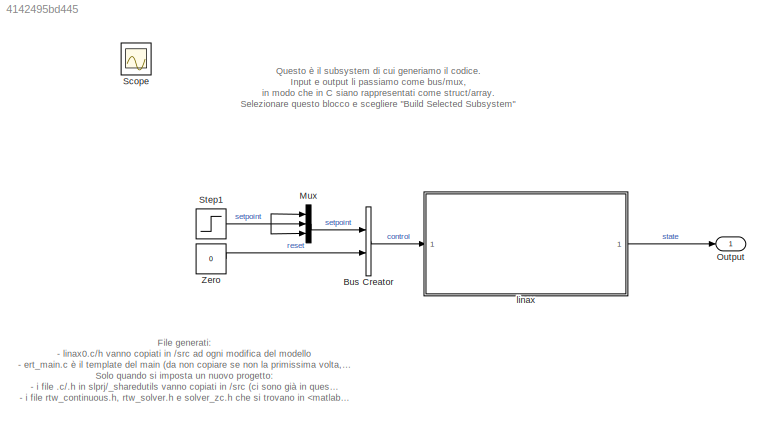
MODEL slx_4142495bd445
KIND model
CONFIG AbsTol = auto
CONFIG EnableMultiTasking = on
CONFIG FixedStep = auto
CONFIG MaxStep = auto
CONFIG MinStep = auto
CONFIG RelTol = 1e-3
CONFIG SampleTimeConstraint = Unconstrained
CONFIG Solver = VariableStepAuto
CONFIG SolverName = VariableStepAuto
CONFIG StartTime = 0.0
CONFIG StopTime = 10
WORKSPACE source: MATLAB code (in-file) + MAT-file member
WORKSPACE cmdLim = Simulink.Parameter
WORKSPACE code: cmdLim.Value = 15;
WORKSPACE code: cmdLim.Description = 'Limit for controlling the maximum surface command angle.';
WORKSPACE code: cmdLim.Min = 0;
WORKSPACE code: cmdLim.Max = 90;
WORKSPACE code: cmdLim.DocUnits = 'deg';
WORKSPACE dispGain = Simulink.Parameter
WORKSPACE code: dispGain.Value = 0.75;
WORKSPACE code: dispGain.Description = 'Gain applied to the displacement error.';
WORKSPACE code: dispGain.Min = 0;
WORKSPACE code: dispGain.Max = [];
WORKSPACE code: dispGain.DocUnits = 'deg/sec/deg';
WORKSPACE dispLim = Simulink.Parameter
WORKSPACE code: dispLim.Value = 30;
WORKSPACE code: dispLim.Description = 'Limit for controlling the maximum commanded angle.';
WORKSPACE code: dispLim.Min = 0;
WORKSPACE code: dispLim.Max = 180;
WORKSPACE code: dispLim.DocUnits = 'deg';
WORKSPACE intGain = Simulink.Parameter
WORKSPACE code: intGain.Value = 0.5;
WORKSPACE code: intGain.Description = 'Gain applied to the integral error.';
WORKSPACE code: intGain.Min = 0;
WORKSPACE code: intGain.Max = [];
WORKSPACE code: intGain.DocUnits = 'deg/sec/deg/sec';
WORKSPACE intLim = Simulink.Parameter
WORKSPACE code: intLim.Value = 5;
WORKSPACE code: intLim.Description = 'Limit for controlling the maximum commanded angle.';
WORKSPACE code: intLim.Min = 0;
WORKSPACE code: intLim.Max = 90;
WORKSPACE code: intLim.DocUnits = 'deg';
WORKSPACE rateGain = Simulink.Parameter
WORKSPACE code: rateGain.Value = 2;
WORKSPACE code: rateGain.Description = 'Gain applied to the rate error.';
WORKSPACE code: rateGain.Min = 0;
WORKSPACE code: rateGain.Max = [];
WORKSPACE code: rateGain.DocUnits = 'deg/deg/sec';
WORKSPACE rateLim = Simulink.Parameter
WORKSPACE code: rateLim.Value = 6;
WORKSPACE code: rateLim.Description = 'Limit for controlling the maximum commanded angle.';
WORKSPACE code: rateLim.Min = 0;
WORKSPACE code: rateLim.Max = 180;
WORKSPACE code: rateLim.DocUnits = 'deg/sec';
WORKSPACE hdgGain = Simulink.Parameter
WORKSPACE code: hdgGain.Value = 0.015;
WORKSPACE MCOS: class17 (value not decoded)
BLOCK [BusCreator] Bus Creator
  DisplayOption = bar
  InheritFromInputs = on
  Inputs = 2
  Ports = [2, 1]
BLOCK [Mux] Mux
  DisplayOption = bar
  Inputs = 3
  Ports = [3, 1]
BLOCK [Outport] Output
  IconDisplay = Port number
  SignalName = state
BLOCK [Scope] Scope
  Floating = off
  IOType = viewer
  NumInputPorts = 1
  Ports = []
  ScopeSpecificationString = Simulink.scopes.TimeScopeBlockCfg('CurrentConfiguration', extmgr.ConfigurationSet(extmgr.Configuration('Core','General UI',true),extmgr.Configuration('Core','Source UI',true),extmgr.Configuration('Sources','WiredSimulink',true),extmgr.Configuration('Visuals','Time Domain',true,'SerializedDisplays',{struct('MinYLimReal','-0.12665','MaxYLimReal','1.13987','YLabelReal','','MinYLimMag','0.00000','MaxY...<+2145ch>
BLOCK [Step] Step1
  SampleTime = 0.001
  Time = 0.1
BLOCK [Constant] Zero
  OutDataTypeStr = Inherit: Inherit via back propagation
  Value = 0
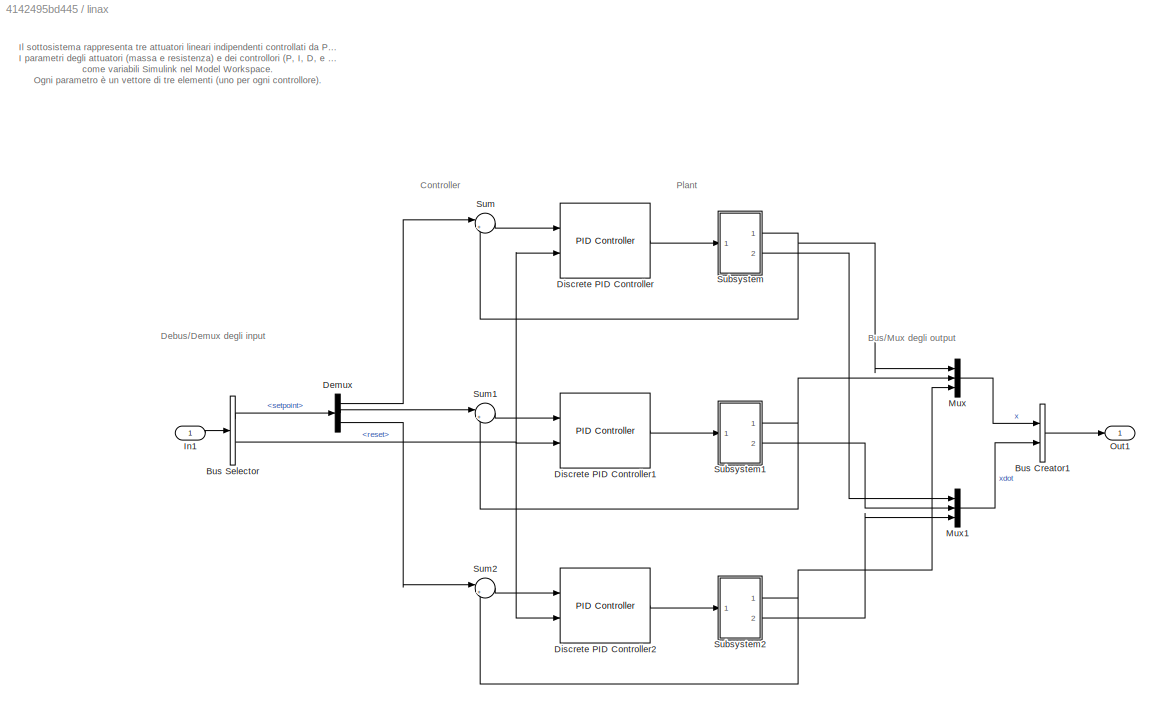
BLOCK [SubSystem] linax
  Ports = [1, 1]
  RequestExecContextInheritance = off
BLOCK [BusCreator] linax/Bus Creator1
  DisplayOption = bar
  InheritFromInputs = on
  Inputs = 2
  Ports = [2, 1]
BLOCK [BusSelector] linax/Bus Selector
  OutputAsBus = off
  OutputSignals = setpoint,reset
  Ports = [1, 2]
BLOCK [Demux] linax/Demux
  DisplayOption = bar
  Outputs = 3
  Ports = [1, 3]
BLOCK [Reference] linax/Discrete PID Controller  REF=simulink/Continuous/PID Controller
  Ports = [2, 1]
  SourceBlock = simulink/Continuous/PID Controller
  SourceProductBaseCode = SL
  SourceProductName = Simulink
  SourceType = PID 1dof
BLOCK [Reference] linax/Discrete PID Controller1  REF=simulink/Continuous/PID Controller
  Ports = [2, 1]
  SourceBlock = simulink/Continuous/PID Controller
  SourceProductBaseCode = SL
  SourceProductName = Simulink
  SourceType = PID 1dof
BLOCK [Reference] linax/Discrete PID Controller2  REF=simulink/Continuous/PID Controller
  Ports = [2, 1]
  SourceBlock = simulink/Continuous/PID Controller
  SourceProductBaseCode = SL
  SourceProductName = Simulink
  SourceType = PID 1dof
BLOCK [Inport] linax/In1
  IconDisplay = Port number
BLOCK [Mux] linax/Mux
  DisplayOption = bar
  Inputs = 3
  Ports = [3, 1]
BLOCK [Mux] linax/Mux1
  DisplayOption = bar
  Inputs = 3
  Ports = [3, 1]
BLOCK [Outport] linax/Out1
  IconDisplay = Port number
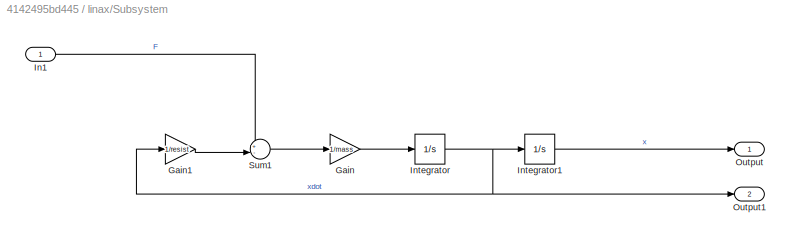
BLOCK [SubSystem] linax/Subsystem
  Ports = [1, 2]
  RequestExecContextInheritance = off
  ShowPortLabels = SignalName
BLOCK [Gain] linax/Subsystem/Gain
  Gain = 1/mass
  OutDataTypeStr = Inherit: Inherit via internal rule
  ParamDataTypeStr = Inherit: Inherit via internal rule
  SaturateOnIntegerOverflow = off
BLOCK [Gain] linax/Subsystem/Gain1
  Gain = 1/resist
  OutDataTypeStr = Inherit: Inherit via internal rule
  ParamDataTypeStr = Inherit: Inherit via internal rule
  SaturateOnIntegerOverflow = off
BLOCK [Inport] linax/Subsystem/In1
  IconDisplay = Port number
BLOCK [Integrator] linax/Subsystem/Integrator
  Ports = [1, 1]
BLOCK [Integrator] linax/Subsystem/Integrator1
  Ports = [1, 1]
BLOCK [Outport] linax/Subsystem/Output
  IconDisplay = Port number
BLOCK [Outport] linax/Subsystem/Output1
  IconDisplay = Port number
  Port = 2
BLOCK [Sum] linax/Subsystem/Sum1
  IconShape = round
  InputSameDT = off
  Inputs = +-|
  OutDataTypeStr = Inherit: Inherit via internal rule
  Ports = [2, 1]
  SaturateOnIntegerOverflow = off
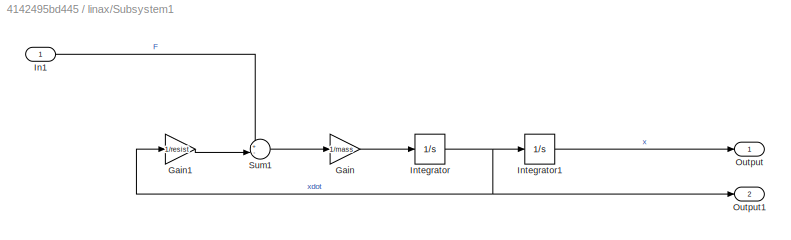
BLOCK [SubSystem] linax/Subsystem1
  Ports = [1, 2]
  RequestExecContextInheritance = off
  ShowPortLabels = SignalName
BLOCK [Gain] linax/Subsystem1/Gain
  Gain = 1/mass
  OutDataTypeStr = Inherit: Inherit via internal rule
  ParamDataTypeStr = Inherit: Inherit via internal rule
  SaturateOnIntegerOverflow = off
BLOCK [Gain] linax/Subsystem1/Gain1
  Gain = 1/resist
  OutDataTypeStr = Inherit: Inherit via internal rule
  ParamDataTypeStr = Inherit: Inherit via internal rule
  SaturateOnIntegerOverflow = off
BLOCK [Inport] linax/Subsystem1/In1
  IconDisplay = Port number
BLOCK [Integrator] linax/Subsystem1/Integrator
  Ports = [1, 1]
BLOCK [Integrator] linax/Subsystem1/Integrator1
  Ports = [1, 1]
BLOCK [Outport] linax/Subsystem1/Output
  IconDisplay = Port number
BLOCK [Outport] linax/Subsystem1/Output1
  IconDisplay = Port number
  Port = 2
BLOCK [Sum] linax/Subsystem1/Sum1
  IconShape = round
  InputSameDT = off
  Inputs = +-|
  OutDataTypeStr = Inherit: Inherit via internal rule
  Ports = [2, 1]
  SaturateOnIntegerOverflow = off
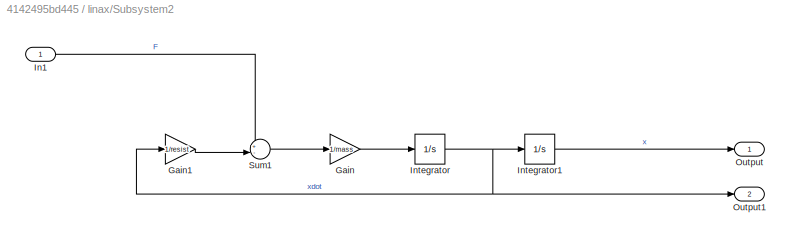
BLOCK [SubSystem] linax/Subsystem2
  Ports = [1, 2]
  RequestExecContextInheritance = off
  ShowPortLabels = SignalName
BLOCK [Gain] linax/Subsystem2/Gain
  Gain = 1/mass
  OutDataTypeStr = Inherit: Inherit via internal rule
  ParamDataTypeStr = Inherit: Inherit via internal rule
  SaturateOnIntegerOverflow = off
BLOCK [Gain] linax/Subsystem2/Gain1
  Gain = 1/resist
  OutDataTypeStr = Inherit: Inherit via internal rule
  ParamDataTypeStr = Inherit: Inherit via internal rule
  SaturateOnIntegerOverflow = off
BLOCK [Inport] linax/Subsystem2/In1
  IconDisplay = Port number
BLOCK [Integrator] linax/Subsystem2/Integrator
  Ports = [1, 1]
BLOCK [Integrator] linax/Subsystem2/Integrator1
  Ports = [1, 1]
BLOCK [Outport] linax/Subsystem2/Output
  IconDisplay = Port number
BLOCK [Outport] linax/Subsystem2/Output1
  IconDisplay = Port number
  Port = 2
BLOCK [Sum] linax/Subsystem2/Sum1
  IconShape = round
  InputSameDT = off
  Inputs = +-|
  OutDataTypeStr = Inherit: Inherit via internal rule
  Ports = [2, 1]
  SaturateOnIntegerOverflow = off
BLOCK [Sum] linax/Sum
  IconShape = round
  InputSameDT = off
  Inputs = |+-
  OutDataTypeStr = Inherit: Inherit via internal rule
  Ports = [2, 1]
  SaturateOnIntegerOverflow = off
BLOCK [Sum] linax/Sum1
  IconShape = round
  InputSameDT = off
  Inputs = |+-
  OutDataTypeStr = Inherit: Inherit via internal rule
  Ports = [2, 1]
  SaturateOnIntegerOverflow = off
BLOCK [Sum] linax/Sum2
  IconShape = round
  InputSameDT = off
  Inputs = |+-
  OutDataTypeStr = Inherit: Inherit via internal rule
  Ports = [2, 1]
  SaturateOnIntegerOverflow = off
ANNOTATION (root): File generati: - linax0.c/h vanno copiati in /src ad ogni modifica del modello - ert_main.c è il template del main (da non copiare se non la primissima volta, poi va modificato a mano) Solo quando si imposta un nuovo progetto: - i file .c/.h in slprj/_sharedutils vanno copiati in /src (ci sono già in questo progetto) - i file rtw_continuous.h, rtw_solver.h e solver_zc.h che si trovano in /simulink...<+63ch>
ANNOTATION (root): Questo è il subsystem di cui generiamo il codice. Input e output li passiamo come bus/mux, in modo che in C siano rappresentati come struct/array. Selezionare questo blocco e scegliere "Build Selected Subsystem"
ANNOTATION linax: Il sottosistema rappresenta tre attuatori lineari indipendenti controllati da PID. I parametri degli attuatori (massa e resistenza) e dei controllori (P, I, D, e saturazione) sono definiti nel model explorer (^H ) come variabili Simulink nel Model Workspace. Ogni parametro è un vettore di tre elementi (uno per ogni controllore).
ANNOTATION linax: Bus/Mux degli output
ANNOTATION linax: Controller
ANNOTATION linax: Debus/Demux degli input
ANNOTATION linax: Plant
LINE Bus Creator:1 -> linax:1
LINE Mux:1 -> Bus Creator:1
NET Step1:1 -> Mux:1, Mux:2, Mux:3
LINE Zero:1 -> Bus Creator:2
LINE linax/Bus Creator1:1 -> linax/Out1:1
LINE linax/Bus Selector:1 -> linax/Demux:1
NET linax/Bus Selector:2 -> linax/Discrete PID Controller1:2, linax/Discrete PID Controller2:2, linax/Discrete PID Controller:2
LINE linax/Demux:1 -> linax/Sum:1
LINE linax/Demux:2 -> linax/Sum1:1
LINE linax/Demux:3 -> linax/Sum2:1
LINE linax/Discrete PID Controller1:1 -> linax/Subsystem1:1
LINE linax/Discrete PID Controller2:1 -> linax/Subsystem2:1
LINE linax/Discrete PID Controller:1 -> linax/Subsystem:1
LINE linax/In1:1 -> linax/Bus Selector:1
LINE linax/Mux1:1 -> linax/Bus Creator1:2
LINE linax/Mux:1 -> linax/Bus Creator1:1
LINE linax/Subsystem/Gain1:1 -> linax/Subsystem/Sum1:2
LINE linax/Subsystem/Gain:1 -> linax/Subsystem/Integrator:1
LINE linax/Subsystem/In1:1 -> linax/Subsystem/Sum1:1
LINE linax/Subsystem/Integrator1:1 -> linax/Subsystem/Output:1
NET linax/Subsystem/Integrator:1 -> linax/Subsystem/Gain1:1, linax/Subsystem/Integrator1:1, linax/Subsystem/Output1:1
LINE linax/Subsystem/Sum1:1 -> linax/Subsystem/Gain:1
LINE linax/Subsystem1/Gain1:1 -> linax/Subsystem1/Sum1:2
LINE linax/Subsystem1/Gain:1 -> linax/Subsystem1/Integrator:1
LINE linax/Subsystem1/In1:1 -> linax/Subsystem1/Sum1:1
LINE linax/Subsystem1/Integrator1:1 -> linax/Subsystem1/Output:1
NET linax/Subsystem1/Integrator:1 -> linax/Subsystem1/Gain1:1, linax/Subsystem1/Integrator1:1, linax/Subsystem1/Output1:1
LINE linax/Subsystem1/Sum1:1 -> linax/Subsystem1/Gain:1
NET linax/Subsystem1:1 -> linax/Mux:2, linax/Sum1:2
LINE linax/Subsystem1:2 -> linax/Mux1:2
LINE linax/Subsystem2/Gain1:1 -> linax/Subsystem2/Sum1:2
LINE linax/Subsystem2/Gain:1 -> linax/Subsystem2/Integrator:1
LINE linax/Subsystem2/In1:1 -> linax/Subsystem2/Sum1:1
LINE linax/Subsystem2/Integrator1:1 -> linax/Subsystem2/Output:1
NET linax/Subsystem2/Integrator:1 -> linax/Subsystem2/Gain1:1, linax/Subsystem2/Integrator1:1, linax/Subsystem2/Output1:1
LINE linax/Subsystem2/Sum1:1 -> linax/Subsystem2/Gain:1
NET linax/Subsystem2:1 -> linax/Mux:3, linax/Sum2:2
LINE linax/Subsystem2:2 -> linax/Mux1:3
NET linax/Subsystem:1 -> linax/Mux:1, linax/Sum:2
LINE linax/Subsystem:2 -> linax/Mux1:1
LINE linax/Sum1:1 -> linax/Discrete PID Controller1:1
LINE linax/Sum2:1 -> linax/Discrete PID Controller2:1
LINE linax/Sum:1 -> linax/Discrete PID Controller:1
LINE linax:1 -> Output:1
note: NET lines group one-source signal fan-out (src -> all destinations, sorted); 1:1 wires keep LINE
